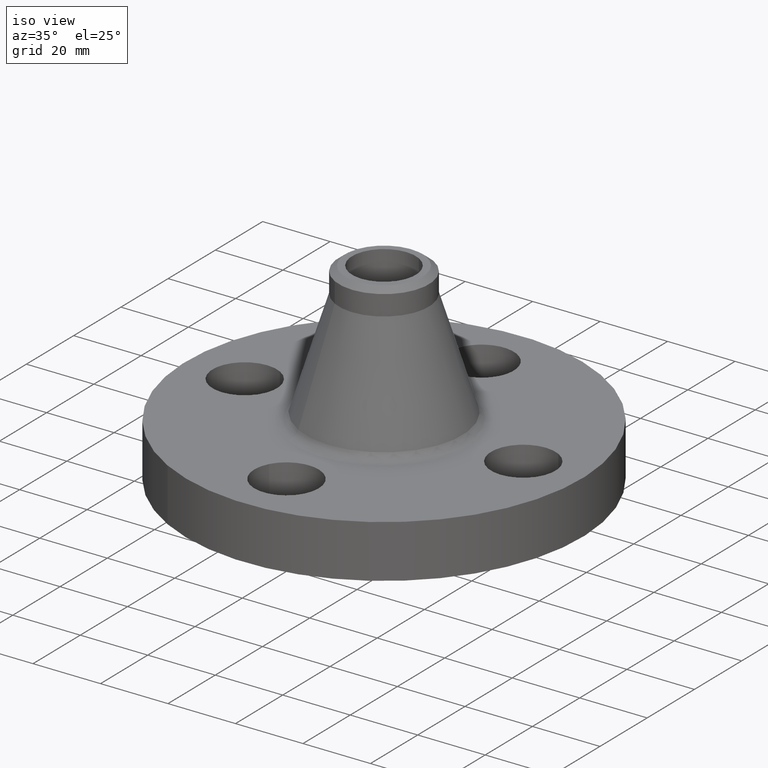
[diagram: clean part render]
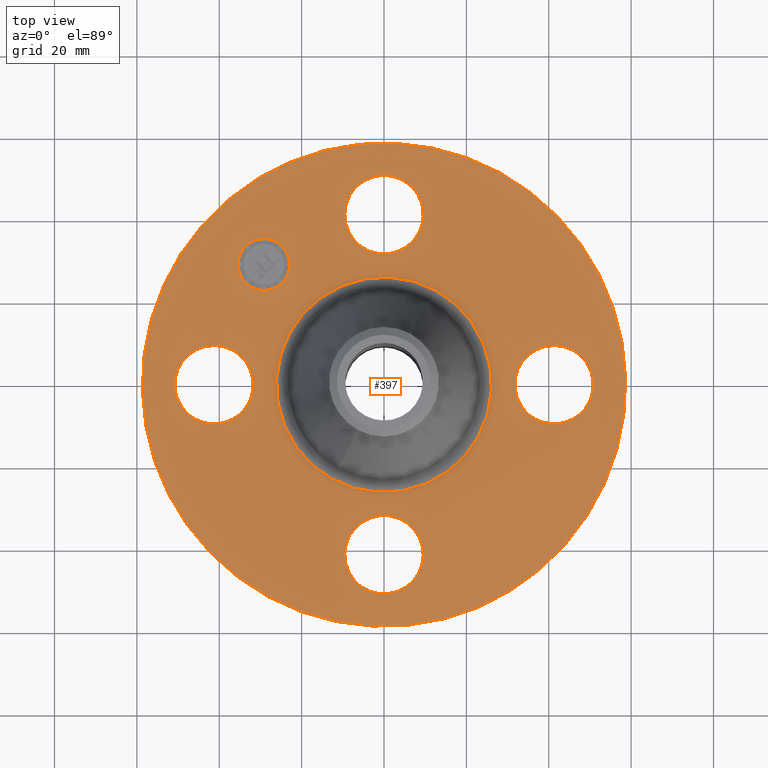
[diagram: tour spotlight — one face highlighted and labeled with its STEP entity id]
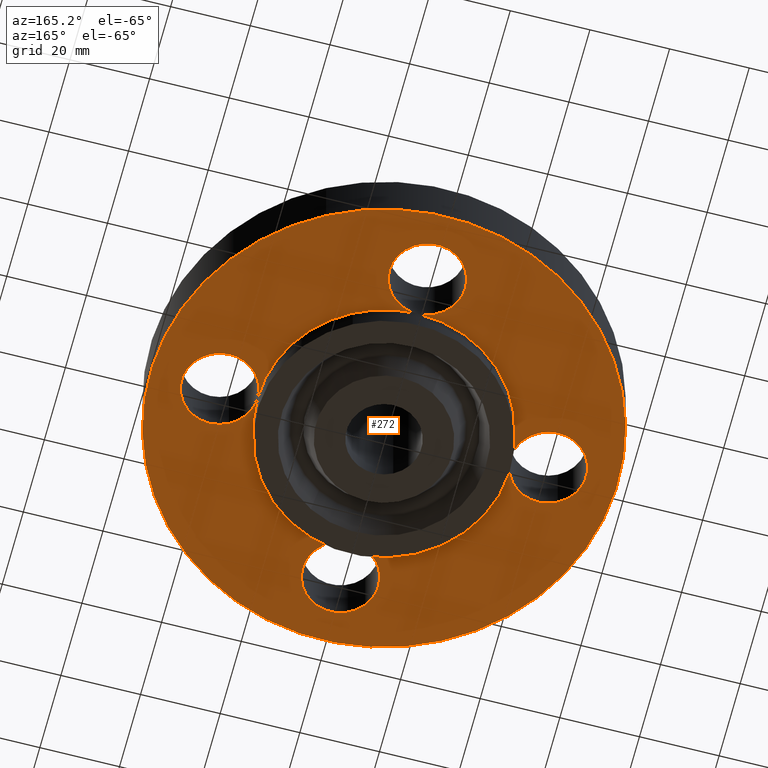
[diagram: tour spotlight — one face highlighted and labeled with its STEP entity id]
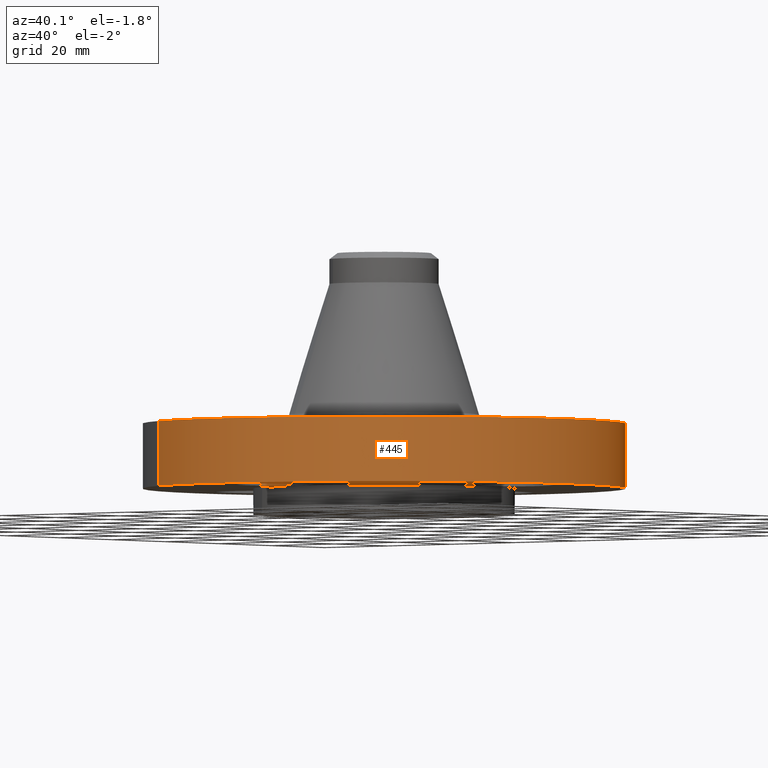
[diagram: tour spotlight — one face highlighted and labeled with its STEP entity id]
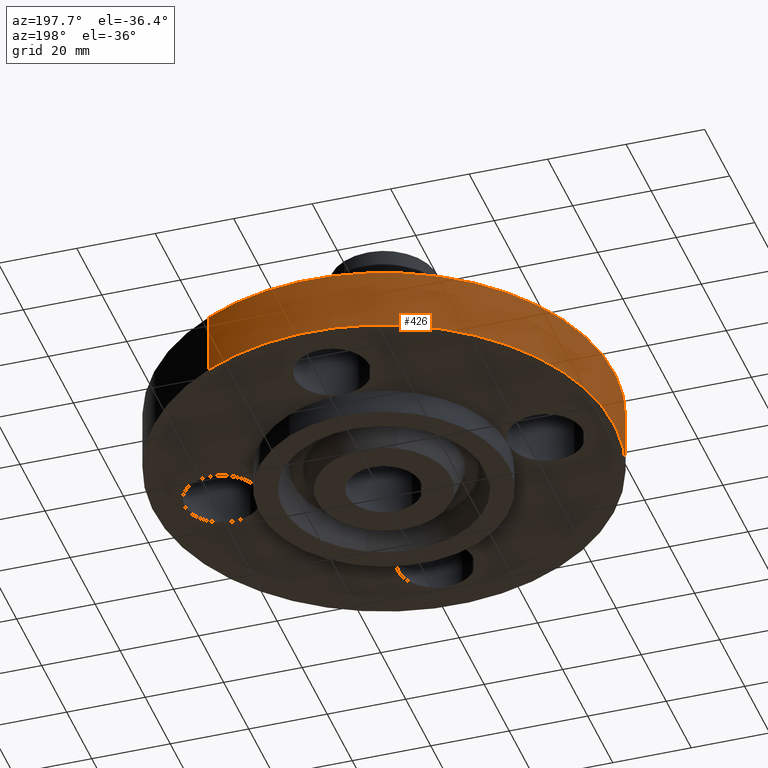
[diagram: tour spotlight — one face highlighted and labeled with its STEP entity id]
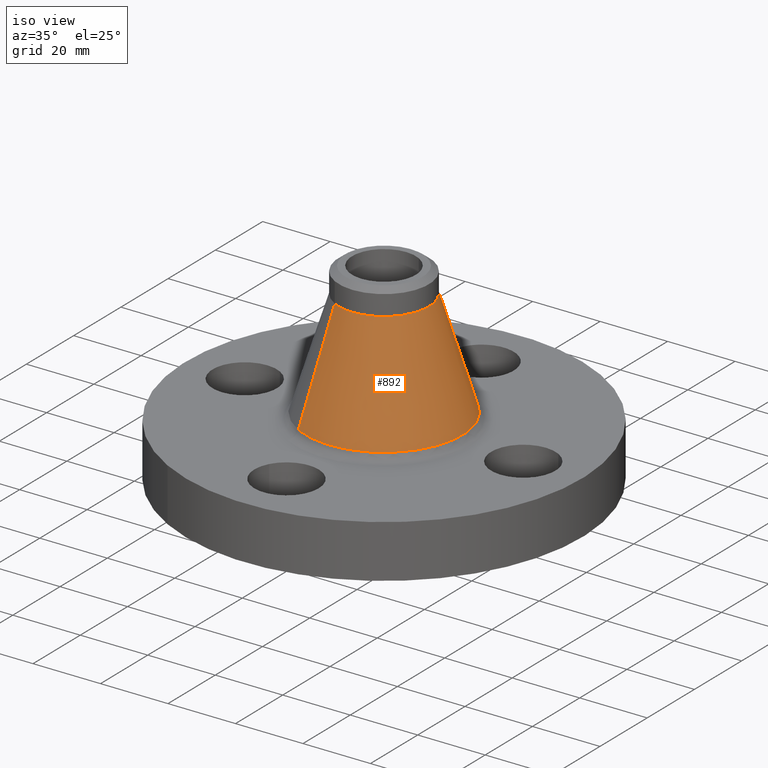
[diagram: tour spotlight — one face highlighted and labeled with its STEP entity id]
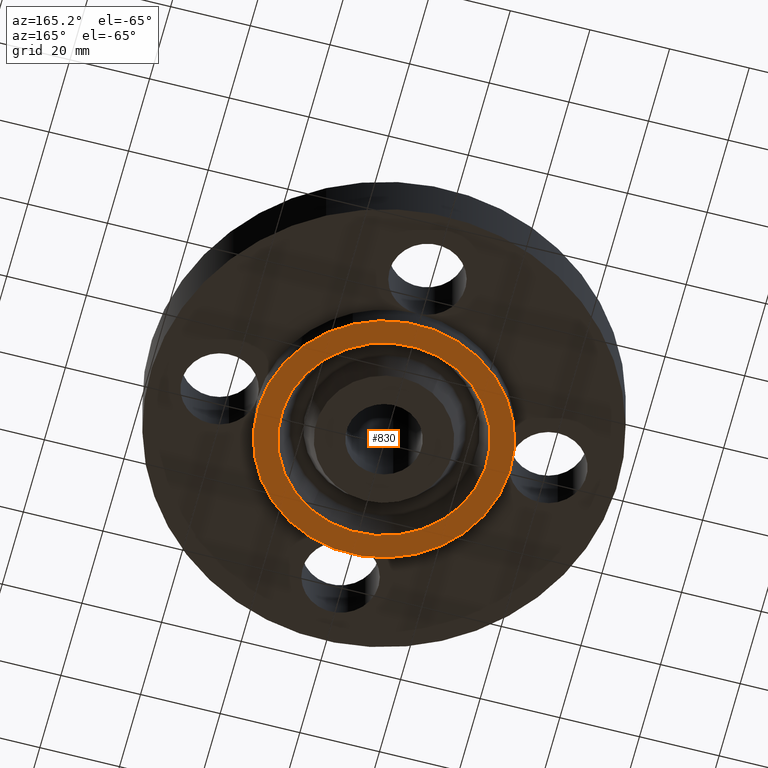
[diagram: tour spotlight — one face highlighted and labeled with its STEP entity id]
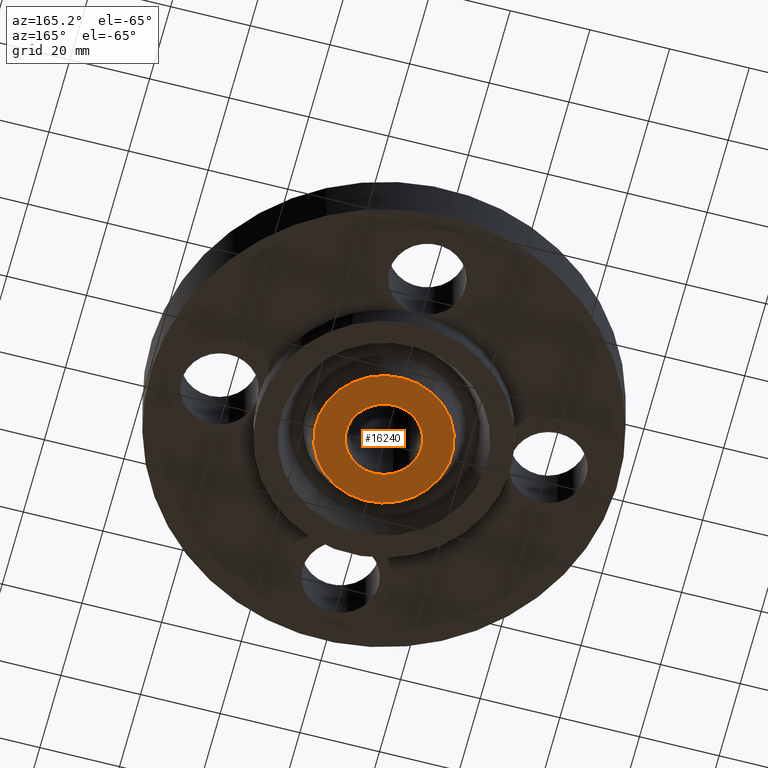
[diagram: tour spotlight — one face highlighted and labeled with its STEP entity id]
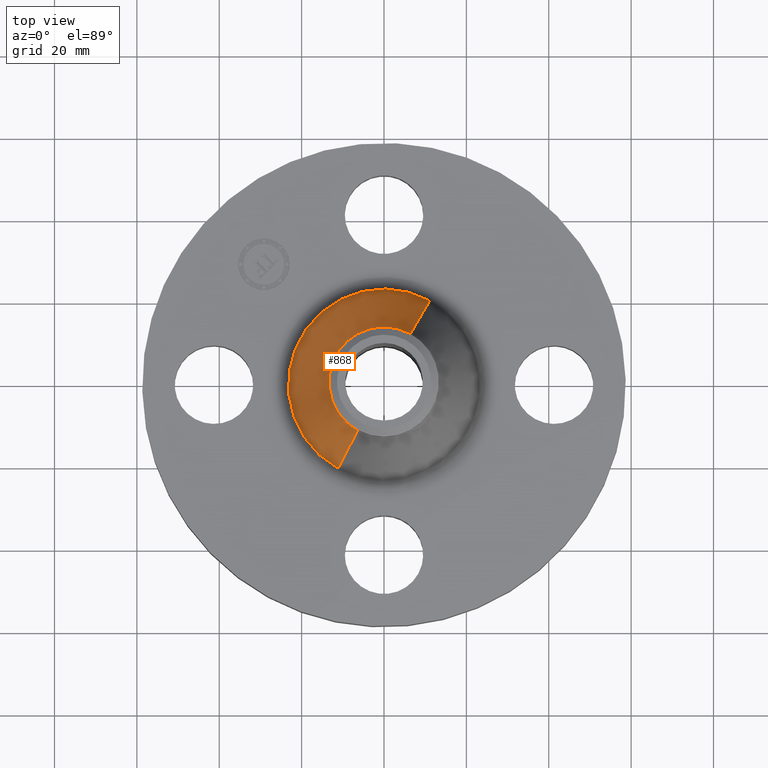
[diagram: tour spotlight — one face highlighted and labeled with its STEP entity id]
A machine part: a face-by-face anatomy tour. The part has 421 B-rep faces; the first image is the clean iso view, then the 8 largest visible faces are spotlighted one at a time (largest first), each with its STEP entity span.

Face 1 — top view, entity #397. In plain terms, the highlighted planar face has unit normal (0, 0, -1).
Definition (entity closure, byte-faithful):
#114=AXIS2_PLACEMENT_3D('Circle Axis2P3D',#112,#113,$) ;
#283=AXIS2_PLACEMENT_3D('Plane Axis2P3D',#280,#281,#282) ;
#287=AXIS2_PLACEMENT_3D('Circle Axis2P3D',#285,#286,$) ;
#296=AXIS2_PLACEMENT_3D('Circle Axis2P3D',#294,#295,$) ;
#309=AXIS2_PLACEMENT_3D('Circle Axis2P3D',#307,#308,$) ;
#318=AXIS2_PLACEMENT_3D('Circle Axis2P3D',#316,#317,$) ;
#327=AXIS2_PLACEMENT_3D('Circle Axis2P3D',#325,#326,$) ;
#336=AXIS2_PLACEMENT_3D('Circle Axis2P3D',#334,#335,$) ;
#345=AXIS2_PLACEMENT_3D('Circle Axis2P3D',#343,#344,$) ;
#354=AXIS2_PLACEMENT_3D('Circle Axis2P3D',#352,#353,$) ;
#363=AXIS2_PLACEMENT_3D('Circle Axis2P3D',#361,#362,$) ;
#372=AXIS2_PLACEMENT_3D('Circle Axis2P3D',#370,#371,$) ;
#381=AXIS2_PLACEMENT_3D('Circle Axis2P3D',#379,#380,$) ;
#390=AXIS2_PLACEMENT_3D('Circle Axis2P3D',#388,#389,$) ;
#46=CARTESIAN_POINT('Vertex',(-0.32909346071,1.80478457699,0.619999999987)) ;
#60=CARTESIAN_POINT('Vertex',(0.329093460698,1.44521542303,0.620000000002)) ;
#64=CARTESIAN_POINT('Control Point',(-0.32909346071,1.80478457699,0.620000000002)) ;
#65=CARTESIAN_POINT('Control Point',(-0.300852965397,1.85647845691,0.620000000001)) ;
#66=CARTESIAN_POINT('Control Point',(-0.262462400496,1.90262732855,0.620000000001)) ;
#67=CARTESIAN_POINT('Control Point',(-0.215365331668,1.94056492066,0.62)) ;
#68=CARTESIAN_POINT('Control Point',(-0.108833594252,1.99592920725,0.619999999998)) ;
#69=CARTESIAN_POINT('Control Point',(0.0107232234565,2.00690110986,0.619999999997)) ;
#70=CARTESIAN_POINT('Control Point',(0.0708518088381,2.00042438176,0.619999999996)) ;
#71=CARTESIAN_POINT('Control Point',(0.185329585265,1.96424353031,0.619999999995)) ;
#72=CARTESIAN_POINT('Control Point',(0.27762732854,1.88746240051,0.619999999993)) ;
#73=CARTESIAN_POINT('Control Point',(0.315564920645,1.84036533168,0.619999999992)) ;
#74=CARTESIAN_POINT('Control Point',(0.370929207243,1.73383359426,0.619999999991)) ;
#75=CARTESIAN_POINT('Control Point',(0.38190110985,1.61427677655,0.61999999999)) ;
#76=CARTESIAN_POINT('Control Point',(0.375424381748,1.55414819117,0.619999999989)) ;
#77=CARTESIAN_POINT('Control Point',(0.357333956023,1.49690930296,0.619999999988)) ;
#78=CARTESIAN_POINT('Control Point',(0.32909346071,1.44521542303,0.619999999987)) ;
#112=CARTESIAN_POINT('Axis2P3D Location',(0.,1.62500000001,0.619999999987)) ;
#280=CARTESIAN_POINT('Axis2P3D Location',(0.,2.31000000001,0.620000000002)) ;
#285=CARTESIAN_POINT('Axis2P3D Location',(-3.08543392061E-011,3.97540268421E-012,0.620000000002)) ;
#289=CARTESIAN_POINT('Vertex',(1.10747299418,2.02721571798,0.619999999972)) ;
#291=CARTESIAN_POINT('Vertex',(-1.10747299418,-2.02721571798,0.619999999972)) ;
#294=CARTESIAN_POINT('Axis2P3D Location',(-5.59482469102E-016,-1.28798459212E-011,0.620000000002)) ;
#307=CARTESIAN_POINT('Axis2P3D Location',(4.36655086542E-011,-6.76973787614E-014,0.620000000002)) ;
#311=CARTESIAN_POINT('Vertex',(-0.493032242462,-0.902489466236,0.620000000003)) ;
#313=CARTESIAN_POINT('Vertex',(0.493032242461,0.902489466232,0.620000000003)) ;
#316=CARTESIAN_POINT('Axis2P3D Location',(-1.28118688012E-011,3.07858026036E-011,0.620000000002)) ;
#325=CARTESIAN_POINT('Axis2P3D Location',(1.62500000001,-1.287956618E-011,0.620000000002)) ;
#329=CARTESIAN_POINT('Vertex',(1.44521542304,-0.32909346071,0.620000000002)) ;
#331=CARTESIAN_POINT('Vertex',(1.80478457699,0.32909346071,0.619999999987)) ;
#334=CARTESIAN_POINT('Axis2P3D Location',(1.62500000001,-1.287956618E-011,0.620000000002)) ;
#343=CARTESIAN_POINT('Axis2P3D Location',(-1.74838271595E-017,-1.62500000003,0.620000000002)) ;
#347=CARTESIAN_POINT('Vertex',(-0.329093460698,-1.44521542305,0.620000000002)) ;
#349=CARTESIAN_POINT('Vertex',(0.32909346071,-1.80478457699,0.619999999987)) ;
#352=CARTESIAN_POINT('Axis2P3D Location',(1.74838271595E-017,-1.62500000003,0.620000000002)) ;
#361=CARTESIAN_POINT('Axis2P3D Location',(-1.62500000001,-1.287956618E-011,0.620000000002)) ;
#365=CARTESIAN_POINT('Vertex',(-1.44521542304,0.329093460685,0.620000000002)) ;
#367=CARTESIAN_POINT('Vertex',(-1.80478457699,-0.32909346071,0.619999999987)) ;
#370=CARTESIAN_POINT('Axis2P3D Location',(-1.62500000001,-1.287956618E-011,0.620000000002)) ;
#379=CARTESIAN_POINT('Axis2P3D Location',(-1.14904851942,1.14904851941,0.620000000002)) ;
#383=CARTESIAN_POINT('Vertex',(-1.32405744778,0.974039591059,0.620000000002)) ;
#385=CARTESIAN_POINT('Vertex',(-0.974039591072,1.32405744776,0.620000000002)) ;
#388=CARTESIAN_POINT('Axis2P3D Location',(-1.14904851942,1.14904851941,0.620000000002)) ;
#113=DIRECTION('Axis2P3D Direction',(0.,-0.,-0.0393700787402)) ;
#281=DIRECTION('Axis2P3D Direction',(0.,0.,-0.0393700787402)) ;
#282=DIRECTION('Axis2P3D XDirection',(0.0393700787402,0.,0.)) ;
#286=DIRECTION('Axis2P3D Direction',(0.,0.,-0.0393700787402)) ;
#295=DIRECTION('Axis2P3D Direction',(0.,0.,-0.0393700787402)) ;
#308=DIRECTION('Axis2P3D Direction',(0.,0.,-0.0393700787402)) ;
#317=DIRECTION('Axis2P3D Direction',(0.,0.,-0.0393700787402)) ;
#326=DIRECTION('Axis2P3D Direction',(0.,0.,-0.0393700787402)) ;
#335=DIRECTION('Axis2P3D Direction',(0.,0.,-0.0393700787402)) ;
#344=DIRECTION('Axis2P3D Direction',(0.,0.,-0.0393700787402)) ;
#353=DIRECTION('Axis2P3D Direction',(0.,0.,-0.0393700787402)) ;
#362=DIRECTION('Axis2P3D Direction',(0.,0.,-0.0393700787402)) ;
#371=DIRECTION('Axis2P3D Direction',(0.,0.,-0.0393700787402)) ;
#380=DIRECTION('Axis2P3D Direction',(0.,0.,-0.0393700787402)) ;
#389=DIRECTION('Axis2P3D Direction',(0.,0.,-0.0393700787402)) ;
#300=ORIENTED_EDGE('',*,*,#293,.F.) ;
#301=ORIENTED_EDGE('',*,*,#298,.F.) ;
#304=ORIENTED_EDGE('',*,*,#79,.T.) ;
#305=ORIENTED_EDGE('',*,*,#116,.T.) ;
#322=ORIENTED_EDGE('',*,*,#315,.T.) ;
#323=ORIENTED_EDGE('',*,*,#320,.T.) ;
#340=ORIENTED_EDGE('',*,*,#333,.T.) ;
#341=ORIENTED_EDGE('',*,*,#338,.T.) ;
#358=ORIENTED_EDGE('',*,*,#351,.T.) ;
#359=ORIENTED_EDGE('',*,*,#356,.T.) ;
#376=ORIENTED_EDGE('',*,*,#369,.T.) ;
#377=ORIENTED_EDGE('',*,*,#374,.T.) ;
#394=ORIENTED_EDGE('',*,*,#387,.T.) ;
#395=ORIENTED_EDGE('',*,*,#392,.T.) ;
#306=FACE_BOUND('',#303,.T.) ;
#324=FACE_BOUND('',#321,.T.) ;
#342=FACE_BOUND('',#339,.T.) ;
#360=FACE_BOUND('',#357,.T.) ;
#378=FACE_BOUND('',#375,.T.) ;
#396=FACE_BOUND('',#393,.T.) ;
#397=ADVANCED_FACE('PartBody',(#302,#306,#324,#342,#360,#378,#396),#284,.F.) ;
#63=B_SPLINE_CURVE_WITH_KNOTS('',5,(#64,#65,#66,#67,#68,#69,#70,#71,#72,#73,#74,#75,#76,#77,#78),.UNSPECIFIED.,.F.,.U.,(6,3,3,3,6),(-14.9618350128,-7.48091750638,8.881784197E-016,7.48091750638,14.9618350128),.UNSPECIFIED.) ;
#115=CIRCLE('generated circle',#114,0.375000000001) ;
#288=CIRCLE('generated circle',#287,2.31000000004) ;
#297=CIRCLE('generated circle',#296,2.31000000004) ;
#310=CIRCLE('generated circle',#309,1.02838126625) ;
#319=CIRCLE('generated circle',#318,1.02838126625) ;
#328=CIRCLE('generated circle',#327,0.374999999988) ;
#337=CIRCLE('generated circle',#336,0.374999999988) ;
#346=CIRCLE('generated circle',#345,0.374999999988) ;
#355=CIRCLE('generated circle',#354,0.374999999988) ;
#364=CIRCLE('generated circle',#363,0.374999999988) ;
#373=CIRCLE('generated circle',#372,0.374999999988) ;
#382=CIRCLE('generated circle',#381,0.247500000012) ;
#391=CIRCLE('generated circle',#390,0.247500000012) ;
#79=EDGE_CURVE('',#47,#61,#63,.T.) ;
#116=EDGE_CURVE('',#61,#47,#115,.T.) ;
#293=EDGE_CURVE('',#290,#292,#288,.T.) ;
#298=EDGE_CURVE('',#292,#290,#297,.T.) ;
#315=EDGE_CURVE('',#312,#314,#310,.T.) ;
#320=EDGE_CURVE('',#314,#312,#319,.T.) ;
#333=EDGE_CURVE('',#330,#332,#328,.T.) ;
#338=EDGE_CURVE('',#332,#330,#337,.T.) ;
#351=EDGE_CURVE('',#348,#350,#346,.T.) ;
#356=EDGE_CURVE('',#350,#348,#355,.T.) ;
#369=EDGE_CURVE('',#366,#368,#364,.T.) ;
#374=EDGE_CURVE('',#368,#366,#373,.T.) ;
#387=EDGE_CURVE('',#384,#386,#382,.T.) ;
#392=EDGE_CURVE('',#386,#384,#391,.T.) ;
#299=EDGE_LOOP('',(#300,#301)) ;
#303=EDGE_LOOP('',(#304,#305)) ;
#321=EDGE_LOOP('',(#322,#323)) ;
#339=EDGE_LOOP('',(#340,#341)) ;
#357=EDGE_LOOP('',(#358,#359)) ;
#375=EDGE_LOOP('',(#376,#377)) ;
#393=EDGE_LOOP('',(#394,#395)) ;
#302=FACE_OUTER_BOUND('',#299,.T.) ;
#284=PLANE('',#283) ;
#47=VERTEX_POINT('',#46) ;
#61=VERTEX_POINT('',#60) ;
#290=VERTEX_POINT('',#289) ;
#292=VERTEX_POINT('',#291) ;
#312=VERTEX_POINT('',#311) ;
#314=VERTEX_POINT('',#313) ;
#330=VERTEX_POINT('',#329) ;
#332=VERTEX_POINT('',#331) ;
#348=VERTEX_POINT('',#347) ;
#350=VERTEX_POINT('',#349) ;
#366=VERTEX_POINT('',#365) ;
#368=VERTEX_POINT('',#367) ;
#384=VERTEX_POINT('',#383) ;
#386=VERTEX_POINT('',#385) ;

Face 2 — auxiliary view, entity #272. In plain terms, the highlighted planar face has unit normal (0, 0, -1).
Definition (entity closure, byte-faithful):
#51=AXIS2_PLACEMENT_3D('Circle Axis2P3D',#49,#50,$) ;
#102=AXIS2_PLACEMENT_3D('Circle Axis2P3D',#100,#101,$) ;
#109=AXIS2_PLACEMENT_3D('Circle Axis2P3D',#107,#108,$) ;
#135=AXIS2_PLACEMENT_3D('Plane Axis2P3D',#132,#133,#134) ;
#139=AXIS2_PLACEMENT_3D('Circle Axis2P3D',#137,#138,$) ;
#148=AXIS2_PLACEMENT_3D('Circle Axis2P3D',#146,#147,$) ;
#157=AXIS2_PLACEMENT_3D('Circle Axis2P3D',#155,#156,$) ;
#166=AXIS2_PLACEMENT_3D('Circle Axis2P3D',#164,#165,$) ;
#173=AXIS2_PLACEMENT_3D('Circle Axis2P3D',#171,#172,$) ;
#178=AXIS2_PLACEMENT_3D('Circle Axis2P3D',#176,#177,$) ;
#185=AXIS2_PLACEMENT_3D('Circle Axis2P3D',#183,#184,$) ;
#192=AXIS2_PLACEMENT_3D('Circle Axis2P3D',#190,#191,$) ;
#199=AXIS2_PLACEMENT_3D('Circle Axis2P3D',#197,#198,$) ;
#204=AXIS2_PLACEMENT_3D('Circle Axis2P3D',#202,#203,$) ;
#211=AXIS2_PLACEMENT_3D('Circle Axis2P3D',#209,#210,$) ;
#216=AXIS2_PLACEMENT_3D('Circle Axis2P3D',#214,#215,$) ;
#223=AXIS2_PLACEMENT_3D('Circle Axis2P3D',#221,#222,$) ;
#230=AXIS2_PLACEMENT_3D('Circle Axis2P3D',#228,#229,$) ;
#237=AXIS2_PLACEMENT_3D('Circle Axis2P3D',#235,#236,$) ;
#242=AXIS2_PLACEMENT_3D('Circle Axis2P3D',#240,#241,$) ;
#249=AXIS2_PLACEMENT_3D('Circle Axis2P3D',#247,#248,$) ;
#44=CARTESIAN_POINT('Vertex',(-0.32909346071,1.80478457699,0.)) ;
#49=CARTESIAN_POINT('Axis2P3D Location',(0.,1.62500000001,0.)) ;
#53=CARTESIAN_POINT('Vertex',(0.32909346071,1.44521542303,2.55543617763E-013)) ;
#100=CARTESIAN_POINT('Axis2P3D Location',(0.,1.62500000001,2.55543617763E-013)) ;
#104=CARTESIAN_POINT('Vertex',(3.95134493804E-015,1.25000000001,2.55543617763E-013)) ;
#107=CARTESIAN_POINT('Axis2P3D Location',(0.,1.62500000001,2.55543617763E-013)) ;
#132=CARTESIAN_POINT('Axis2P3D Location',(0.,1.25000000001,0.)) ;
#137=CARTESIAN_POINT('Axis2P3D Location',(3.08543392061E-011,-6.85505895268E-012,0.)) ;
#141=CARTESIAN_POINT('Vertex',(-1.10747299418,-2.02721571797,-1.46668329275E-011)) ;
#143=CARTESIAN_POINT('Vertex',(1.10747299418,2.02721571798,-1.46668329275E-011)) ;
#146=CARTESIAN_POINT('Axis2P3D Location',(5.59482469102E-016,1.00003295234E-011,0.)) ;
#155=CARTESIAN_POINT('Axis2P3D Location',(4.51559699519E-011,-1.62500000003,0.)) ;
#159=CARTESIAN_POINT('Vertex',(-0.329093460698,-1.44521542303,0.)) ;
#161=CARTESIAN_POINT('Vertex',(2.79741234551E-016,-1.25000000001,-1.46668329275E-011)) ;
#164=CARTESIAN_POINT('Axis2P3D Location',(1.74838271595E-017,-1.625,0.)) ;
#168=CARTESIAN_POINT('Vertex',(0.329093460698,-1.80478457698,0.)) ;
#171=CARTESIAN_POINT('Axis2P3D Location',(-1.8883967006E-011,-1.625,0.)) ;
#176=CARTESIAN_POINT('Axis2P3D Location',(5.50948962742E-011,-4.50949863627E-011,0.)) ;
#180=CARTESIAN_POINT('Vertex',(1.25000000001,-2.09805925913E-016,-1.46668329275E-011)) ;
#183=CARTESIAN_POINT('Axis2P3D Location',(1.62500000004,5.5156019734E-011,0.)) ;
#187=CARTESIAN_POINT('Vertex',(1.44521542304,-0.329093460688,0.)) ;
#190=CARTESIAN_POINT('Axis2P3D Location',(1.62500000001,1.00000497821E-011,0.)) ;
#194=CARTESIAN_POINT('Vertex',(1.80478457699,0.329093460708,0.)) ;
#197=CARTESIAN_POINT('Axis2P3D Location',(1.62500000001,-8.88388225626E-012,0.)) ;
#202=CARTESIAN_POINT('Axis2P3D Location',(-1.28371853829E-011,7.51440904251E-012,0.)) ;
#206=CARTESIAN_POINT('Vertex',(0.599281923259,1.09697820237,-1.46668329275E-011)) ;
#209=CARTESIAN_POINT('Axis2P3D Location',(2.37968699864E-011,6.6424975756E-011,0.)) ;
#214=CARTESIAN_POINT('Axis2P3D Location',(7.00911245055E-011,-6.00910747233E-011,0.)) ;
#218=CARTESIAN_POINT('Vertex',(-1.25,1.00003295234E-011,0.)) ;
#221=CARTESIAN_POINT('Axis2P3D Location',(-1.62500000004,-3.51559201698E-011,0.)) ;
#225=CARTESIAN_POINT('Vertex',(-1.44521542304,0.329093460708,0.)) ;
#228=CARTESIAN_POINT('Axis2P3D Location',(-1.62500000001,1.00000497821E-011,0.)) ;
#232=CARTESIAN_POINT('Vertex',(-1.80478457699,-0.329093460688,0.)) ;
#235=CARTESIAN_POINT('Axis2P3D Location',(-1.62500000001,2.88839818205E-011,0.)) ;
#240=CARTESIAN_POINT('Axis2P3D Location',(1.28371853829E-011,1.24856905217E-011,0.)) ;
#244=CARTESIAN_POINT('Vertex',(-0.59928192326,-1.09697820237,-1.46668329275E-011)) ;
#247=CARTESIAN_POINT('Axis2P3D Location',(-2.37968699864E-011,-4.64248761918E-011,0.)) ;
#50=DIRECTION('Axis2P3D Direction',(0.,-0.,-0.0393700787402)) ;
#101=DIRECTION('Axis2P3D Direction',(0.,-0.,-0.0393700787402)) ;
#108=DIRECTION('Axis2P3D Direction',(0.,-0.,-0.0393700787402)) ;
#133=DIRECTION('Axis2P3D Direction',(0.,0.,-0.0393700787402)) ;
#134=DIRECTION('Axis2P3D XDirection',(0.0393700787402,0.,0.)) ;
#138=DIRECTION('Axis2P3D Direction',(0.,0.,-0.0393700787402)) ;
#147=DIRECTION('Axis2P3D Direction',(0.,0.,-0.0393700787402)) ;
#156=DIRECTION('Axis2P3D Direction',(0.,0.,-0.0393700787402)) ;
#165=DIRECTION('Axis2P3D Direction',(0.,0.,-0.0393700787402)) ;
#172=DIRECTION('Axis2P3D Direction',(0.,0.,-0.0393700787402)) ;
#177=DIRECTION('Axis2P3D Direction',(0.,0.,-0.0393700787402)) ;
#184=DIRECTION('Axis2P3D Direction',(0.,0.,-0.0393700787402)) ;
#191=DIRECTION('Axis2P3D Direction',(0.,0.,-0.0393700787402)) ;
#198=DIRECTION('Axis2P3D Direction',(0.,0.,-0.0393700787402)) ;
#203=DIRECTION('Axis2P3D Direction',(0.,0.,-0.0393700787402)) ;
#210=DIRECTION('Axis2P3D Direction',(0.,0.,-0.0393700787402)) ;
#215=DIRECTION('Axis2P3D Direction',(0.,0.,-0.0393700787402)) ;
#222=DIRECTION('Axis2P3D Direction',(0.,0.,-0.0393700787402)) ;
#229=DIRECTION('Axis2P3D Direction',(0.,0.,-0.0393700787402)) ;
#236=DIRECTION('Axis2P3D Direction',(0.,0.,-0.0393700787402)) ;
#241=DIRECTION('Axis2P3D Direction',(0.,0.,-0.0393700787402)) ;
#248=DIRECTION('Axis2P3D Direction',(0.,0.,-0.0393700787402)) ;
#152=ORIENTED_EDGE('',*,*,#145,.T.) ;
#153=ORIENTED_EDGE('',*,*,#150,.T.) ;
#253=ORIENTED_EDGE('',*,*,#163,.F.) ;
#254=ORIENTED_EDGE('',*,*,#170,.F.) ;
#255=ORIENTED_EDGE('',*,*,#175,.F.) ;
#256=ORIENTED_EDGE('',*,*,#182,.F.) ;
#257=ORIENTED_EDGE('',*,*,#189,.F.) ;
#258=ORIENTED_EDGE('',*,*,#196,.F.) ;
#259=ORIENTED_EDGE('',*,*,#201,.F.) ;
#260=ORIENTED_EDGE('',*,*,#208,.F.) ;
#261=ORIENTED_EDGE('',*,*,#213,.F.) ;
#262=ORIENTED_EDGE('',*,*,#106,.F.) ;
#263=ORIENTED_EDGE('',*,*,#55,.F.) ;
#264=ORIENTED_EDGE('',*,*,#111,.F.) ;
#265=ORIENTED_EDGE('',*,*,#220,.F.) ;
#266=ORIENTED_EDGE('',*,*,#227,.F.) ;
#267=ORIENTED_EDGE('',*,*,#234,.F.) ;
#268=ORIENTED_EDGE('',*,*,#239,.F.) ;
#269=ORIENTED_EDGE('',*,*,#246,.F.) ;
#270=ORIENTED_EDGE('',*,*,#251,.F.) ;
#271=FACE_BOUND('',#252,.T.) ;
#272=ADVANCED_FACE('PartBody',(#154,#271),#136,.T.) ;
#52=CIRCLE('generated circle',#51,0.375000000001) ;
#103=CIRCLE('generated circle',#102,0.375000000001) ;
#110=CIRCLE('generated circle',#109,0.375000000001) ;
#140=CIRCLE('generated circle',#139,2.31000000004) ;
#149=CIRCLE('generated circle',#148,2.31000000004) ;
#158=CIRCLE('generated circle',#157,0.37500000004) ;
#167=CIRCLE('generated circle',#166,0.374999999988) ;
#174=CIRCLE('generated circle',#173,0.375000000008) ;
#179=CIRCLE('generated circle',#178,1.24999999994) ;
#186=CIRCLE('generated circle',#185,0.37500000004) ;
#193=CIRCLE('generated circle',#192,0.374999999988) ;
#200=CIRCLE('generated circle',#199,0.375000000008) ;
#205=CIRCLE('generated circle',#204,1.25000000001) ;
#212=CIRCLE('generated circle',#211,1.24999999994) ;
#217=CIRCLE('generated circle',#216,1.25000000007) ;
#224=CIRCLE('generated circle',#223,0.37500000004) ;
#231=CIRCLE('generated circle',#230,0.374999999988) ;
#238=CIRCLE('generated circle',#237,0.375000000008) ;
#243=CIRCLE('generated circle',#242,1.25000000001) ;
#250=CIRCLE('generated circle',#249,1.24999999994) ;
#55=EDGE_CURVE('',#45,#54,#52,.T.) ;
#106=EDGE_CURVE('',#54,#105,#103,.T.) ;
#111=EDGE_CURVE('',#105,#45,#110,.T.) ;
#145=EDGE_CURVE('',#142,#144,#140,.T.) ;
#150=EDGE_CURVE('',#144,#142,#149,.T.) ;
#163=EDGE_CURVE('',#160,#162,#158,.T.) ;
#170=EDGE_CURVE('',#169,#160,#167,.T.) ;
#175=EDGE_CURVE('',#162,#169,#174,.T.) ;
#182=EDGE_CURVE('',#181,#162,#179,.T.) ;
#189=EDGE_CURVE('',#188,#181,#186,.T.) ;
#196=EDGE_CURVE('',#195,#188,#193,.T.) ;
#201=EDGE_CURVE('',#181,#195,#200,.T.) ;
#208=EDGE_CURVE('',#207,#181,#205,.T.) ;
#213=EDGE_CURVE('',#105,#207,#212,.T.) ;
#220=EDGE_CURVE('',#219,#105,#217,.T.) ;
#227=EDGE_CURVE('',#226,#219,#224,.T.) ;
#234=EDGE_CURVE('',#233,#226,#231,.T.) ;
#239=EDGE_CURVE('',#219,#233,#238,.T.) ;
#246=EDGE_CURVE('',#245,#219,#243,.T.) ;
#251=EDGE_CURVE('',#162,#245,#250,.T.) ;
#151=EDGE_LOOP('',(#152,#153)) ;
#252=EDGE_LOOP('',(#253,#254,#255,#256,#257,#258,#259,#260,#261,#262,#263,#264,#265,#266,#267,#268,#269,#270)) ;
#154=FACE_OUTER_BOUND('',#151,.T.) ;
#136=PLANE('',#135) ;
#45=VERTEX_POINT('',#44) ;
#54=VERTEX_POINT('',#53) ;
#105=VERTEX_POINT('',#104) ;
#142=VERTEX_POINT('',#141) ;
#144=VERTEX_POINT('',#143) ;
#160=VERTEX_POINT('',#159) ;
#162=VERTEX_POINT('',#161) ;
#169=VERTEX_POINT('',#168) ;
#181=VERTEX_POINT('',#180) ;
#188=VERTEX_POINT('',#187) ;
#195=VERTEX_POINT('',#194) ;
#207=VERTEX_POINT('',#206) ;
#219=VERTEX_POINT('',#218) ;
#226=VERTEX_POINT('',#225) ;
#233=VERTEX_POINT('',#232) ;
#245=VERTEX_POINT('',#244) ;

Face 3 — auxiliary view, entity #445. In plain terms, the highlighted cylindrical surface (partial cylindrical patch) has radius 58.674 mm, axis along (0, 0, -1).
Definition (entity closure, byte-faithful):
#148=AXIS2_PLACEMENT_3D('Circle Axis2P3D',#146,#147,$) ;
#287=AXIS2_PLACEMENT_3D('Circle Axis2P3D',#285,#286,$) ;
#437=AXIS2_PLACEMENT_3D('Cylinder Axis2P3D',#434,#435,#436) ;
#141=CARTESIAN_POINT('Vertex',(-1.10747299418,-2.02721571797,-1.46668329275E-011)) ;
#143=CARTESIAN_POINT('Vertex',(1.10747299418,2.02721571798,-1.46668329275E-011)) ;
#146=CARTESIAN_POINT('Axis2P3D Location',(5.59482469102E-016,1.00003295234E-011,0.)) ;
#285=CARTESIAN_POINT('Axis2P3D Location',(-3.08543392061E-011,3.97540268421E-012,0.620000000002)) ;
#289=CARTESIAN_POINT('Vertex',(1.10747299418,2.02721571798,0.619999999972)) ;
#291=CARTESIAN_POINT('Vertex',(-1.10747299418,-2.02721571798,0.619999999972)) ;
#410=CARTESIAN_POINT('Line Origine',(-1.10747299418,-2.02721571798,0.309999999979)) ;
#415=CARTESIAN_POINT('Line Origine',(1.10747299418,2.02721571798,0.309999999979)) ;
#434=CARTESIAN_POINT('Axis2P3D Location',(0.,0.,1.)) ;
#147=DIRECTION('Axis2P3D Direction',(0.,0.,-0.0393700787402)) ;
#286=DIRECTION('Axis2P3D Direction',(0.,0.,-0.0393700787402)) ;
#411=DIRECTION('Vector Direction',(0.,0.,-0.0393700787402)) ;
#416=DIRECTION('Vector Direction',(0.,0.,-0.0393700787402)) ;
#435=DIRECTION('Axis2P3D Direction',(0.,0.,-0.0393700787402)) ;
#436=DIRECTION('Axis2P3D XDirection',(0.0188750212049,0.0345504945626,0.)) ;
#412=VECTOR('Line Direction',#411,0.0393700787402) ;
#417=VECTOR('Line Direction',#416,0.0393700787402) ;
#440=ORIENTED_EDGE('',*,*,#150,.F.) ;
#441=ORIENTED_EDGE('',*,*,#419,.T.) ;
#442=ORIENTED_EDGE('',*,*,#293,.T.) ;
#443=ORIENTED_EDGE('',*,*,#414,.F.) ;
#445=ADVANCED_FACE('PartBody',(#444),#438,.T.) ;
#149=CIRCLE('generated circle',#148,2.31000000004) ;
#288=CIRCLE('generated circle',#287,2.31000000004) ;
#438=CYLINDRICAL_SURFACE('generated cylinder',#437,2.31000000001) ;
#150=EDGE_CURVE('',#144,#142,#149,.T.) ;
#293=EDGE_CURVE('',#290,#292,#288,.T.) ;
#414=EDGE_CURVE('',#142,#292,#413,.F.) ;
#419=EDGE_CURVE('',#144,#290,#418,.F.) ;
#439=EDGE_LOOP('',(#440,#441,#442,#443)) ;
#444=FACE_OUTER_BOUND('',#439,.T.) ;
#413=LINE('Line',#410,#412) ;
#418=LINE('Line',#415,#417) ;
#142=VERTEX_POINT('',#141) ;
#144=VERTEX_POINT('',#143) ;
#290=VERTEX_POINT('',#289) ;
#292=VERTEX_POINT('',#291) ;

Face 4 — auxiliary view, entity #426. In plain terms, the highlighted cylindrical surface (partial cylindrical patch) has radius 58.674 mm, axis along (0, 0, -1).
Definition (entity closure, byte-faithful):
#139=AXIS2_PLACEMENT_3D('Circle Axis2P3D',#137,#138,$) ;
#296=AXIS2_PLACEMENT_3D('Circle Axis2P3D',#294,#295,$) ;
#408=AXIS2_PLACEMENT_3D('Cylinder Axis2P3D',#405,#406,#407) ;
#137=CARTESIAN_POINT('Axis2P3D Location',(3.08543392061E-011,-6.85505895268E-012,0.)) ;
#141=CARTESIAN_POINT('Vertex',(-1.10747299418,-2.02721571797,-1.46668329275E-011)) ;
#143=CARTESIAN_POINT('Vertex',(1.10747299418,2.02721571798,-1.46668329275E-011)) ;
#289=CARTESIAN_POINT('Vertex',(1.10747299418,2.02721571798,0.619999999972)) ;
#291=CARTESIAN_POINT('Vertex',(-1.10747299418,-2.02721571798,0.619999999972)) ;
#294=CARTESIAN_POINT('Axis2P3D Location',(-5.59482469102E-016,-1.28798459212E-011,0.620000000002)) ;
#405=CARTESIAN_POINT('Axis2P3D Location',(0.,0.,1.)) ;
#410=CARTESIAN_POINT('Line Origine',(-1.10747299418,-2.02721571798,0.309999999979)) ;
#415=CARTESIAN_POINT('Line Origine',(1.10747299418,2.02721571798,0.309999999979)) ;
#138=DIRECTION('Axis2P3D Direction',(0.,0.,-0.0393700787402)) ;
#295=DIRECTION('Axis2P3D Direction',(0.,0.,-0.0393700787402)) ;
#406=DIRECTION('Axis2P3D Direction',(0.,0.,-0.0393700787402)) ;
#407=DIRECTION('Axis2P3D XDirection',(-0.0188750212049,-0.0345504945626,0.)) ;
#411=DIRECTION('Vector Direction',(0.,0.,-0.0393700787402)) ;
#416=DIRECTION('Vector Direction',(0.,0.,-0.0393700787402)) ;
#412=VECTOR('Line Direction',#411,0.0393700787402) ;
#417=VECTOR('Line Direction',#416,0.0393700787402) ;
#421=ORIENTED_EDGE('',*,*,#145,.F.) ;
#422=ORIENTED_EDGE('',*,*,#414,.T.) ;
#423=ORIENTED_EDGE('',*,*,#298,.T.) ;
#424=ORIENTED_EDGE('',*,*,#419,.F.) ;
#426=ADVANCED_FACE('PartBody',(#425),#409,.T.) ;
#140=CIRCLE('generated circle',#139,2.31000000004) ;
#297=CIRCLE('generated circle',#296,2.31000000004) ;
#409=CYLINDRICAL_SURFACE('generated cylinder',#408,2.31000000001) ;
#145=EDGE_CURVE('',#142,#144,#140,.T.) ;
#298=EDGE_CURVE('',#292,#290,#297,.T.) ;
#414=EDGE_CURVE('',#142,#292,#413,.F.) ;
#419=EDGE_CURVE('',#144,#290,#418,.F.) ;
#420=EDGE_LOOP('',(#421,#422,#423,#424)) ;
#425=FACE_OUTER_BOUND('',#420,.T.) ;
#413=LINE('Line',#410,#412) ;
#418=LINE('Line',#415,#417) ;
#142=VERTEX_POINT('',#141) ;
#144=VERTEX_POINT('',#143) ;
#290=VERTEX_POINT('',#289) ;
#292=VERTEX_POINT('',#291) ;

Face 5 — iso view, entity #892. In plain terms, the highlighted conical surface has half-angle 17.256 deg.
Definition (entity closure, byte-faithful):
#711=AXIS2_PLACEMENT_3D('Circle Axis2P3D',#709,#710,$) ;
#879=AXIS2_PLACEMENT_3D('Cone Axis2P3D',#876,#877,#878) ;
#883=AXIS2_PLACEMENT_3D('Circle Axis2P3D',#881,#882,$) ;
#675=CARTESIAN_POINT('Vertex',(-0.438090692601,-0.801919633801,0.704403161619)) ;
#682=CARTESIAN_POINT('Vertex',(0.438090692601,0.801919633801,0.704403161619)) ;
#709=CARTESIAN_POINT('Axis2P3D Location',(0.,0.,0.704403161619)) ;
#843=CARTESIAN_POINT('Line Origine',(-0.344894550183,-0.631325239395,1.33021689046)) ;
#847=CARTESIAN_POINT('Vertex',(-0.251698407768,-0.460730844994,1.95603061929)) ;
#854=CARTESIAN_POINT('Vertex',(0.251698407768,0.460730844994,1.95603061929)) ;
#857=CARTESIAN_POINT('Line Origine',(0.344894550183,0.631325239395,1.33021689046)) ;
#876=CARTESIAN_POINT('Axis2P3D Location',(0.,0.,1.95603061929)) ;
#881=CARTESIAN_POINT('Axis2P3D Location',(0.,0.,1.95603061929)) ;
#710=DIRECTION('Axis2P3D Direction',(-0.,0.,-0.0393700787402)) ;
#844=DIRECTION('Vector Direction',(-0.00559909232789,-0.0102490697589,-0.0375980030612)) ;
#858=DIRECTION('Vector Direction',(0.00559909232789,0.0102490697589,-0.0375980030612)) ;
#877=DIRECTION('Axis2P3D Direction',(0.,0.,-0.0393700787402)) ;
#878=DIRECTION('Axis2P3D XDirection',(0.0188750212049,0.0345504945626,0.)) ;
#882=DIRECTION('Axis2P3D Direction',(-0.,0.,-0.0393700787402)) ;
#845=VECTOR('Line Direction',#844,0.0393700787402) ;
#859=VECTOR('Line Direction',#858,0.0393700787402) ;
#887=ORIENTED_EDGE('',*,*,#713,.F.) ;
#888=ORIENTED_EDGE('',*,*,#861,.T.) ;
#889=ORIENTED_EDGE('',*,*,#885,.T.) ;
#890=ORIENTED_EDGE('',*,*,#849,.F.) ;
#892=ADVANCED_FACE('PartBody',(#891),#880,.T.) ;
#712=CIRCLE('generated circle',#711,0.913782552919) ;
#884=CIRCLE('generated circle',#883,0.525000000002) ;
#880=CONICAL_SURFACE('Cone',#879,0.525000000002,0.301172693271) ;
#713=EDGE_CURVE('',#683,#676,#712,.T.) ;
#849=EDGE_CURVE('',#676,#848,#846,.F.) ;
#861=EDGE_CURVE('',#683,#855,#860,.F.) ;
#885=EDGE_CURVE('',#855,#848,#884,.T.) ;
#886=EDGE_LOOP('',(#887,#888,#889,#890)) ;
#891=FACE_OUTER_BOUND('',#886,.T.) ;
#846=LINE('Line',#843,#845) ;
#860=LINE('Line',#857,#859) ;
#676=VERTEX_POINT('',#675) ;
#683=VERTEX_POINT('',#682) ;
#848=VERTEX_POINT('',#847) ;
#855=VERTEX_POINT('',#854) ;

Face 6 — auxiliary view, entity #830. In plain terms, the highlighted planar face has unit normal (0, 0, -1).
Definition (entity closure, byte-faithful):
#509=AXIS2_PLACEMENT_3D('Circle Axis2P3D',#507,#508,$) ;
#598=AXIS2_PLACEMENT_3D('Circle Axis2P3D',#596,#597,$) ;
#806=AXIS2_PLACEMENT_3D('Plane Axis2P3D',#803,#804,#805) ;
#814=AXIS2_PLACEMENT_3D('Circle Axis2P3D',#812,#813,$) ;
#823=AXIS2_PLACEMENT_3D('Circle Axis2P3D',#821,#822,$) ;
#507=CARTESIAN_POINT('Axis2P3D Location',(0.,0.,-0.25)) ;
#511=CARTESIAN_POINT('Vertex',(0.59928192326,1.09697820237,-0.25)) ;
#513=CARTESIAN_POINT('Vertex',(-0.59928192326,-1.09697820237,-0.250000000001)) ;
#596=CARTESIAN_POINT('Axis2P3D Location',(0.,0.,-0.250000000001)) ;
#803=CARTESIAN_POINT('Axis2P3D Location',(0.,0.371000000001,-0.250000000001)) ;
#812=CARTESIAN_POINT('Axis2P3D Location',(0.,1.13252539455E-011,-0.250000000001)) ;
#816=CARTESIAN_POINT('Vertex',(0.487096347208,-0.891623882873,-0.250000000001)) ;
#818=CARTESIAN_POINT('Vertex',(-0.487096347208,0.891623882896,-0.250000000001)) ;
#821=CARTESIAN_POINT('Axis2P3D Location',(0.,1.13252539455E-011,-0.250000000001)) ;
#508=DIRECTION('Axis2P3D Direction',(0.,0.,-0.0393700787402)) ;
#597=DIRECTION('Axis2P3D Direction',(0.,0.,-0.0393700787402)) ;
#804=DIRECTION('Axis2P3D Direction',(0.,0.,-0.0393700787402)) ;
#805=DIRECTION('Axis2P3D XDirection',(0.0393700787402,0.,0.)) ;
#813=DIRECTION('Axis2P3D Direction',(0.,0.,-0.0393700787402)) ;
#822=DIRECTION('Axis2P3D Direction',(0.,0.,-0.0393700787402)) ;
#809=ORIENTED_EDGE('',*,*,#600,.T.) ;
#810=ORIENTED_EDGE('',*,*,#515,.T.) ;
#827=ORIENTED_EDGE('',*,*,#820,.F.) ;
#828=ORIENTED_EDGE('',*,*,#825,.F.) ;
#829=FACE_BOUND('',#826,.T.) ;
#830=ADVANCED_FACE('PartBody',(#811,#829),#807,.T.) ;
#510=CIRCLE('generated circle',#509,1.25000000001) ;
#599=CIRCLE('generated circle',#598,1.25000000001) ;
#815=CIRCLE('generated circle',#814,1.016) ;
#824=CIRCLE('generated circle',#823,1.016) ;
#515=EDGE_CURVE('',#512,#514,#510,.T.) ;
#600=EDGE_CURVE('',#514,#512,#599,.T.) ;
#820=EDGE_CURVE('',#817,#819,#815,.T.) ;
#825=EDGE_CURVE('',#819,#817,#824,.T.) ;
#808=EDGE_LOOP('',(#809,#810)) ;
#826=EDGE_LOOP('',(#827,#828)) ;
#811=FACE_OUTER_BOUND('',#808,.T.) ;
#807=PLANE('',#806) ;
#512=VERTEX_POINT('',#511) ;
#514=VERTEX_POINT('',#513) ;
#817=VERTEX_POINT('',#816) ;
#819=VERTEX_POINT('',#818) ;

Face 7 — auxiliary view, entity #16240. In plain terms, the highlighted planar face has unit normal (0, 0, -1).
Definition (entity closure, byte-faithful):
#806=AXIS2_PLACEMENT_3D('Plane Axis2P3D',#803,#804,#805) ;
#15704=AXIS2_PLACEMENT_3D('Circle Axis2P3D',#15702,#15703,$) ;
#15735=AXIS2_PLACEMENT_3D('Circle Axis2P3D',#15733,#15734,$) ;
#16191=AXIS2_PLACEMENT_3D('Circle Axis2P3D',#16189,#16190,$) ;
#16215=AXIS2_PLACEMENT_3D('Circle Axis2P3D',#16213,#16214,$) ;
#803=CARTESIAN_POINT('Axis2P3D Location',(0.,0.371000000001,-0.250000000001)) ;
#15699=CARTESIAN_POINT('Vertex',(-0.177866874823,-0.325583130462,-0.25)) ;
#15702=CARTESIAN_POINT('Axis2P3D Location',(0.,0.,-0.25)) ;
#15706=CARTESIAN_POINT('Vertex',(0.177866874823,0.325583130462,-0.250000000001)) ;
#15733=CARTESIAN_POINT('Axis2P3D Location',(0.,0.,-0.250000000001)) ;
#16179=CARTESIAN_POINT('Vertex',(-0.322173961959,0.589735481577,-0.250000000001)) ;
#16186=CARTESIAN_POINT('Vertex',(0.322173961959,-0.589735481627,-0.250000000001)) ;
#16189=CARTESIAN_POINT('Axis2P3D Location',(0.,0.,-0.250000000001)) ;
#16213=CARTESIAN_POINT('Axis2P3D Location',(0.,0.,-0.250000000001)) ;
#804=DIRECTION('Axis2P3D Direction',(0.,0.,-0.0393700787402)) ;
#805=DIRECTION('Axis2P3D XDirection',(0.0393700787402,0.,0.)) ;
#15703=DIRECTION('Axis2P3D Direction',(-0.,0.,-0.0393700787402)) ;
#15734=DIRECTION('Axis2P3D Direction',(-0.,0.,-0.0393700787402)) ;
#16190=DIRECTION('Axis2P3D Direction',(0.,0.,0.0393700787402)) ;
#16214=DIRECTION('Axis2P3D Direction',(0.,0.,0.0393700787402)) ;
#16233=ORIENTED_EDGE('',*,*,#16193,.T.) ;
#16234=ORIENTED_EDGE('',*,*,#16217,.T.) ;
#16237=ORIENTED_EDGE('',*,*,#15737,.F.) ;
#16238=ORIENTED_EDGE('',*,*,#15708,.F.) ;
#16239=FACE_BOUND('',#16236,.T.) ;
#16240=ADVANCED_FACE('PartBody',(#16235,#16239),#807,.T.) ;
#15705=CIRCLE('generated circle',#15704,0.371000000001) ;
#15736=CIRCLE('generated circle',#15735,0.371000000001) ;
#16192=CIRCLE('generated circle',#16191,0.672000000003) ;
#16216=CIRCLE('generated circle',#16215,0.672000000003) ;
#15708=EDGE_CURVE('',#15700,#15707,#15705,.T.) ;
#15737=EDGE_CURVE('',#15707,#15700,#15736,.T.) ;
#16193=EDGE_CURVE('',#16180,#16187,#16192,.F.) ;
#16217=EDGE_CURVE('',#16187,#16180,#16216,.F.) ;
#16232=EDGE_LOOP('',(#16233,#16234)) ;
#16236=EDGE_LOOP('',(#16237,#16238)) ;
#16235=FACE_OUTER_BOUND('',#16232,.T.) ;
#807=PLANE('',#806) ;
#15700=VERTEX_POINT('',#15699) ;
#15707=VERTEX_POINT('',#15706) ;
#16180=VERTEX_POINT('',#16179) ;
#16187=VERTEX_POINT('',#16186) ;

Face 8 — top view, entity #868. In plain terms, the highlighted conical surface has half-angle 17.256 deg.
Definition (entity closure, byte-faithful):
#680=AXIS2_PLACEMENT_3D('Circle Axis2P3D',#678,#679,$) ;
#841=AXIS2_PLACEMENT_3D('Cone Axis2P3D',#838,#839,#840) ;
#852=AXIS2_PLACEMENT_3D('Circle Axis2P3D',#850,#851,$) ;
#675=CARTESIAN_POINT('Vertex',(-0.438090692601,-0.801919633801,0.704403161619)) ;
#678=CARTESIAN_POINT('Axis2P3D Location',(0.,0.,0.704403161619)) ;
#682=CARTESIAN_POINT('Vertex',(0.438090692601,0.801919633801,0.704403161619)) ;
#838=CARTESIAN_POINT('Axis2P3D Location',(0.,0.,1.95603061929)) ;
#843=CARTESIAN_POINT('Line Origine',(-0.344894550183,-0.631325239395,1.33021689046)) ;
#847=CARTESIAN_POINT('Vertex',(-0.251698407768,-0.460730844994,1.95603061929)) ;
#850=CARTESIAN_POINT('Axis2P3D Location',(0.,0.,1.95603061929)) ;
#854=CARTESIAN_POINT('Vertex',(0.251698407768,0.460730844994,1.95603061929)) ;
#857=CARTESIAN_POINT('Line Origine',(0.344894550183,0.631325239395,1.33021689046)) ;
#679=DIRECTION('Axis2P3D Direction',(-0.,0.,-0.0393700787402)) ;
#839=DIRECTION('Axis2P3D Direction',(0.,0.,-0.0393700787402)) ;
#840=DIRECTION('Axis2P3D XDirection',(-0.0188750212049,-0.0345504945626,0.)) ;
#844=DIRECTION('Vector Direction',(-0.00559909232789,-0.0102490697589,-0.0375980030612)) ;
#851=DIRECTION('Axis2P3D Direction',(-0.,0.,-0.0393700787402)) ;
#858=DIRECTION('Vector Direction',(0.00559909232789,0.0102490697589,-0.0375980030612)) ;
#845=VECTOR('Line Direction',#844,0.0393700787402) ;
#859=VECTOR('Line Direction',#858,0.0393700787402) ;
#863=ORIENTED_EDGE('',*,*,#684,.F.) ;
#864=ORIENTED_EDGE('',*,*,#849,.T.) ;
#865=ORIENTED_EDGE('',*,*,#856,.T.) ;
#866=ORIENTED_EDGE('',*,*,#861,.F.) ;
#868=ADVANCED_FACE('PartBody',(#867),#842,.T.) ;
#681=CIRCLE('generated circle',#680,0.913782552919) ;
#853=CIRCLE('generated circle',#852,0.525000000002) ;
#842=CONICAL_SURFACE('Cone',#841,0.525000000002,0.301172693271) ;
#684=EDGE_CURVE('',#676,#683,#681,.T.) ;
#849=EDGE_CURVE('',#676,#848,#846,.F.) ;
#856=EDGE_CURVE('',#848,#855,#853,.T.) ;
#861=EDGE_CURVE('',#683,#855,#860,.F.) ;
#862=EDGE_LOOP('',(#863,#864,#865,#866)) ;
#867=FACE_OUTER_BOUND('',#862,.T.) ;
#846=LINE('Line',#843,#845) ;
#860=LINE('Line',#857,#859) ;
#676=VERTEX_POINT('',#675) ;
#683=VERTEX_POINT('',#682) ;
#848=VERTEX_POINT('',#847) ;
#855=VERTEX_POINT('',#854) ;